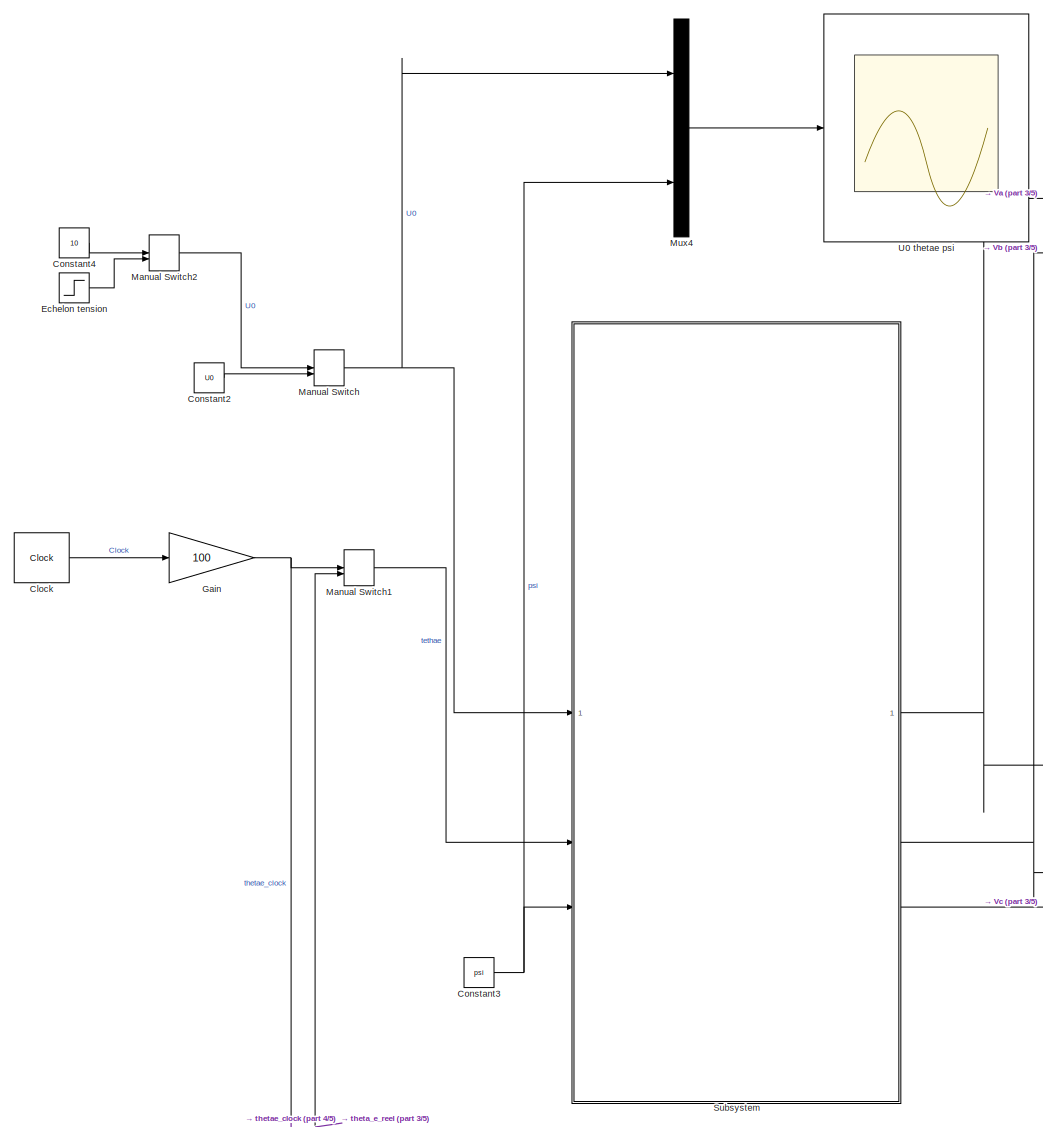
[diagram: root canvas - part 1/5, middle left region]
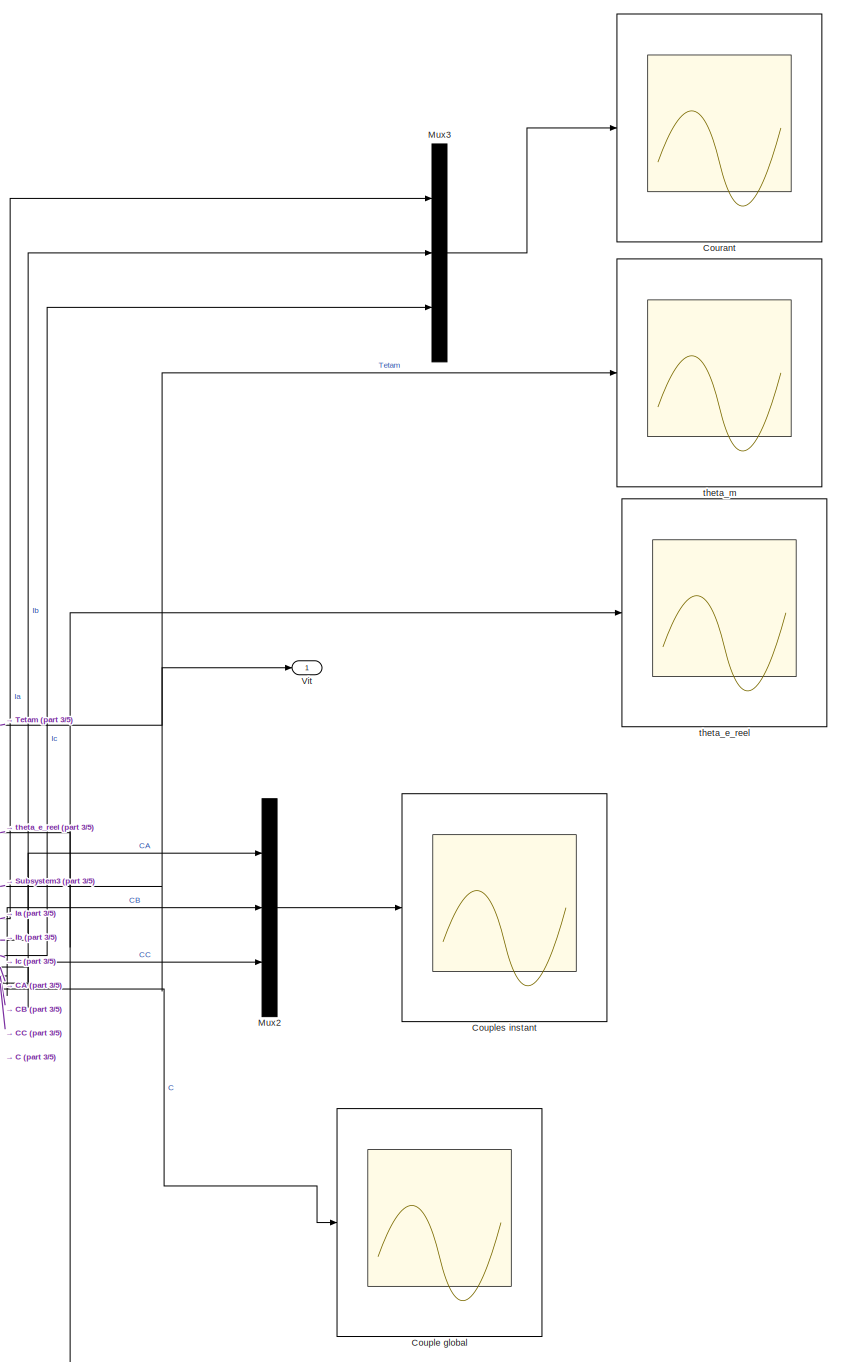
[diagram: root canvas - part 2/5, right side, full height]
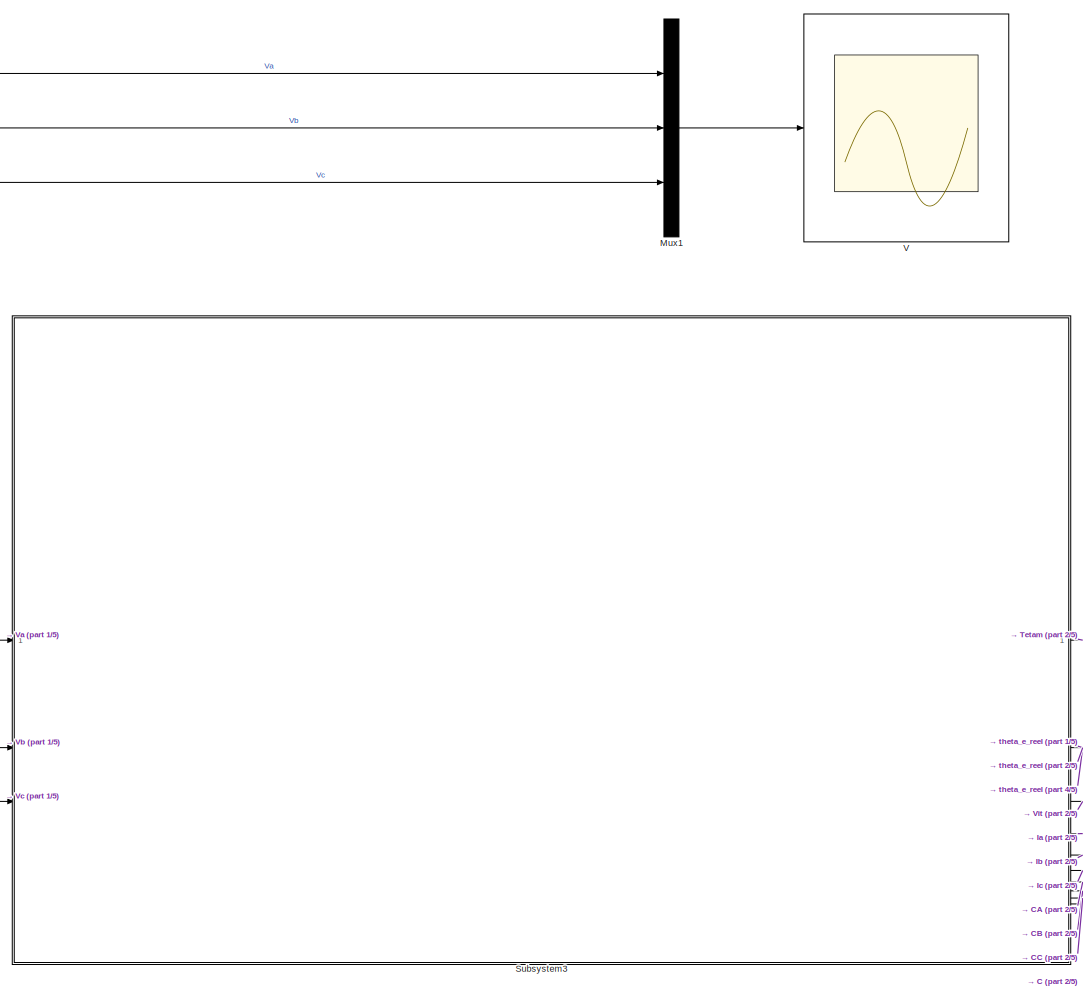
[diagram: root canvas - part 3/5, central region]
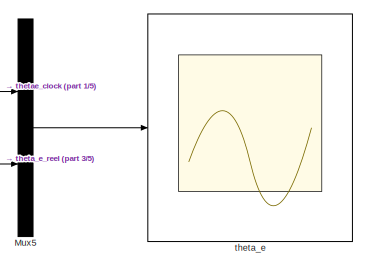
[diagram: root canvas - part 4/5, bottom left region]
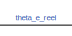
[diagram: root canvas - part 5/5, bottom center region]
MODEL slx_a0b3b5fac551
KIND model
CONFIG AbsTol = auto
CONFIG EnableMultiTasking = off
CONFIG FixedStep = auto
CONFIG InitFcn = parametretp3
CONFIG MaxStep = auto
CONFIG MinStep = auto
CONFIG RelTol = 1e-3
CONFIG SampleTimeConstraint = Unconstrained
CONFIG SolverName = ode23t
CONFIG StartFcn = parametretp3
CONFIG StartTime = 0.0
CONFIG StopTime = 4
BLOCK [Clock] Clock
BLOCK [Constant] Constant2
  Value = U0
BLOCK [Constant] Constant3
  Value = psi
BLOCK [Constant] Constant4
  Value = 10
BLOCK [Scope] Couple global
  Floating = off
  NumInputPorts = 1
  ScopeSpecificationString = Simulink.scopes.TimeScopeBlockCfg('CurrentConfiguration', extmgr.ConfigurationSet(extmgr.Configuration('Core','General UI',true),extmgr.Configuration('Core','Source UI',true),extmgr.Configuration('Sources','WiredSimulink',true,'DataLoggingVariableName','ScopeData1'),extmgr.Configuration('Visuals','Time Domain',true,'SerializedDisplays',{struct('MinYLimReal','-12.49998','MaxYLimReal','12.5','YLabel...<+1504ch>
BLOCK [Scope] Couples instant
  Floating = off
  NumInputPorts = 1
  ScopeSpecificationString = Simulink.scopes.TimeScopeBlockCfg('CurrentConfiguration', extmgr.ConfigurationSet(extmgr.Configuration('Core','General UI',true),extmgr.Configuration('Core','Source UI',true),extmgr.Configuration('Sources','WiredSimulink',true),extmgr.Configuration('Visuals','Time Domain',true,'SerializedDisplays',{struct('MinYLimReal','-12.49998','MaxYLimReal','12.5','YLabelReal','','MinYLimMag','0.00000','MaxYLi...<+1465ch>
BLOCK [Scope] Courant
  Floating = off
  NumInputPorts = 1
  ScopeSpecificationString = Simulink.scopes.TimeScopeBlockCfg('CurrentConfiguration', extmgr.ConfigurationSet(extmgr.Configuration('Core','General UI',true),extmgr.Configuration('Core','Source UI',true),extmgr.Configuration('Sources','WiredSimulink',true,'DataLoggingVariableName','ScopeData4'),extmgr.Configuration('Visuals','Time Domain',true,'SerializedDisplays',{struct('MinYLimReal','-12.96682','MaxYLimReal','13.04144','YL...<+1520ch>
BLOCK [Step] Echelon tension
  After = 10
  SampleTime = 0
BLOCK [Gain] Gain
  Gain = 100
BLOCK [ManualSwitch] Manual Switch
BLOCK [ManualSwitch] Manual Switch1
  CurrentSetting = 0
BLOCK [ManualSwitch] Manual Switch2
  CurrentSetting = 0
BLOCK [Mux] Mux1
  DisplayOption = bar
  Inputs = 3
BLOCK [Mux] Mux2
  DisplayOption = bar
  Inputs = 3
BLOCK [Mux] Mux3
  DisplayOption = bar
  Inputs = 3
BLOCK [Mux] Mux4
  DisplayOption = bar
  Inputs = 3
BLOCK [Mux] Mux5
  DisplayOption = bar
  Inputs = 2
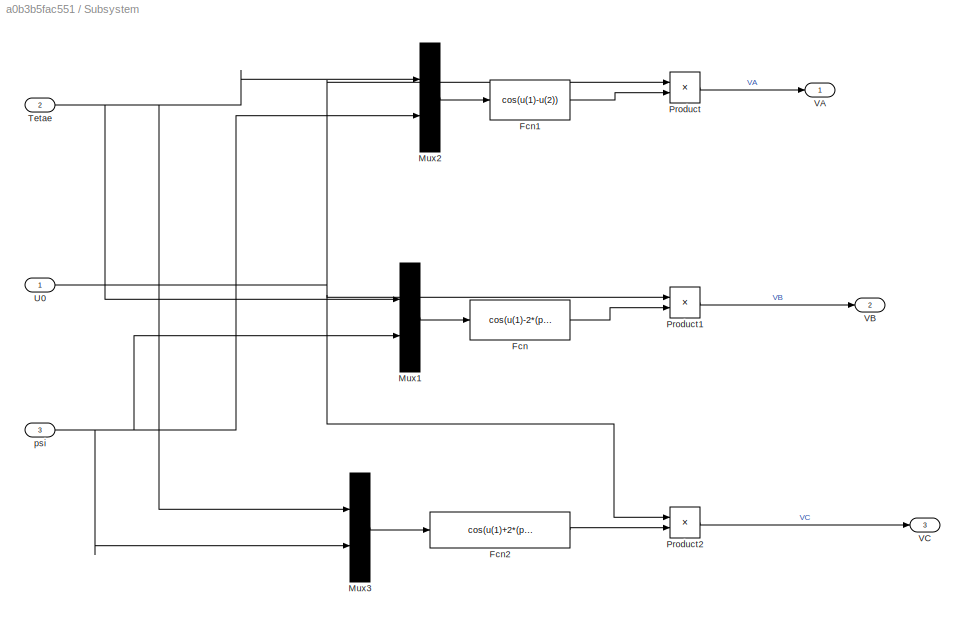
BLOCK [SubSystem] Subsystem
BLOCK [Fcn] Subsystem/Fcn
  Expr = cos(u(1)-2*(pi/3)-psi)
BLOCK [Fcn] Subsystem/Fcn1
  Expr = cos(u(1)-u(2))
BLOCK [Fcn] Subsystem/Fcn2
  Expr = cos(u(1)+2*(pi/3)-psi)
BLOCK [Mux] Subsystem/Mux1
  DisplayOption = bar
  Inputs = 2
BLOCK [Mux] Subsystem/Mux2
  DisplayOption = bar
  Inputs = 2
BLOCK [Mux] Subsystem/Mux3
  DisplayOption = bar
  Inputs = 2
BLOCK [Product] Subsystem/Product
BLOCK [Product] Subsystem/Product1
BLOCK [Product] Subsystem/Product2
BLOCK [Inport] Subsystem/Tetae
  Port = 2
BLOCK [Inport] Subsystem/U0
BLOCK [Outport] Subsystem/VA
BLOCK [Outport] Subsystem/VB
  Port = 2
BLOCK [Outport] Subsystem/VC
  Port = 3
BLOCK [Inport] Subsystem/psi
  Port = 3
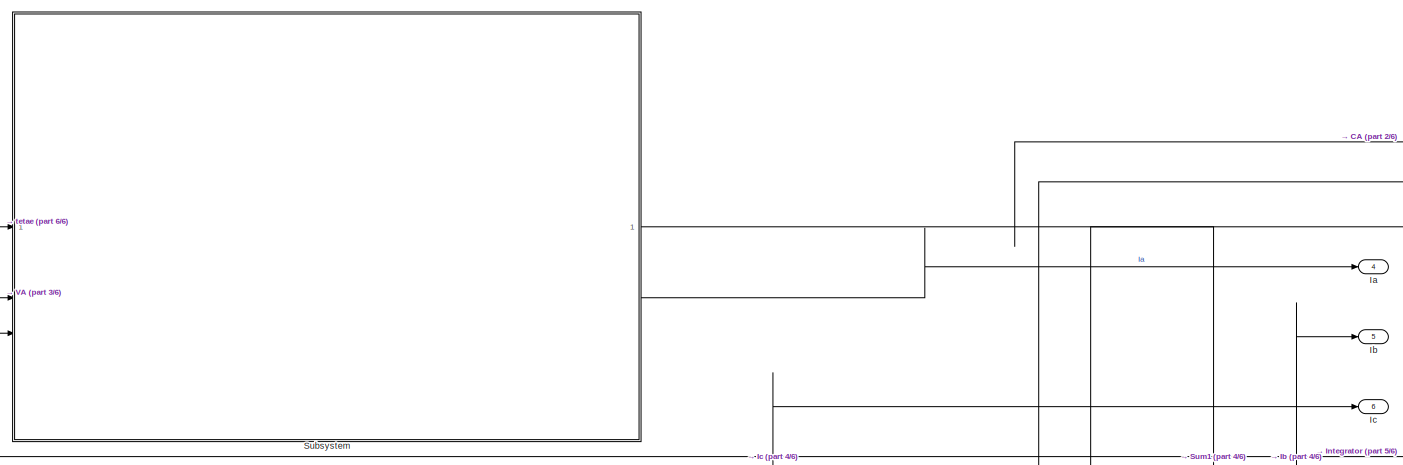
[diagram: Subsystem3 - part 1/6, top center region]
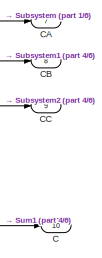
[diagram: Subsystem3 - part 2/6, top right region]
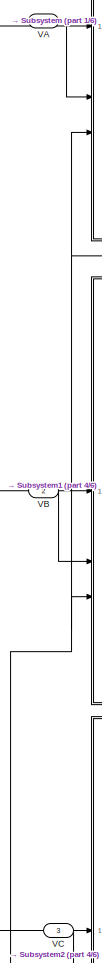
[diagram: Subsystem3 - part 3/6, middle left region]
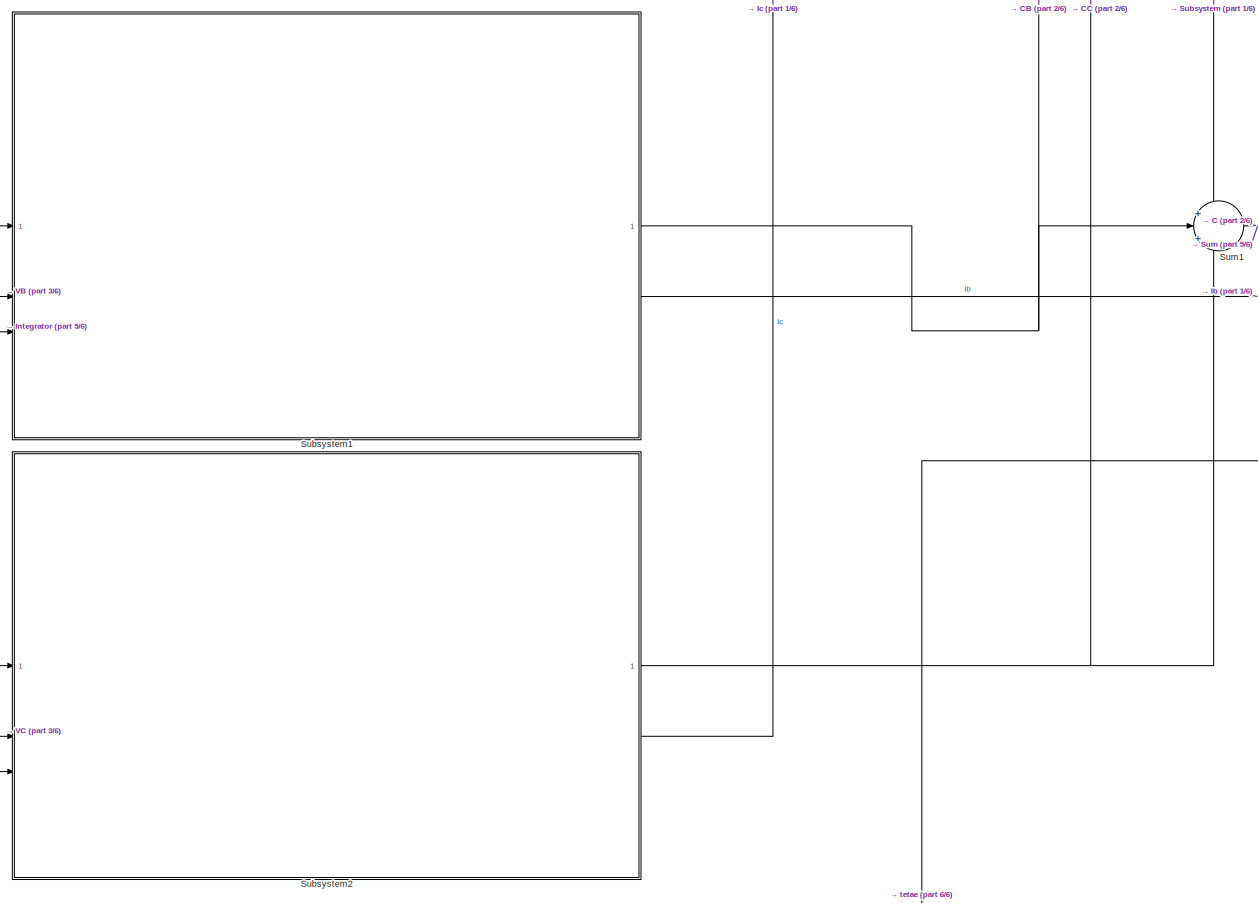
[diagram: Subsystem3 - part 4/6, central region]
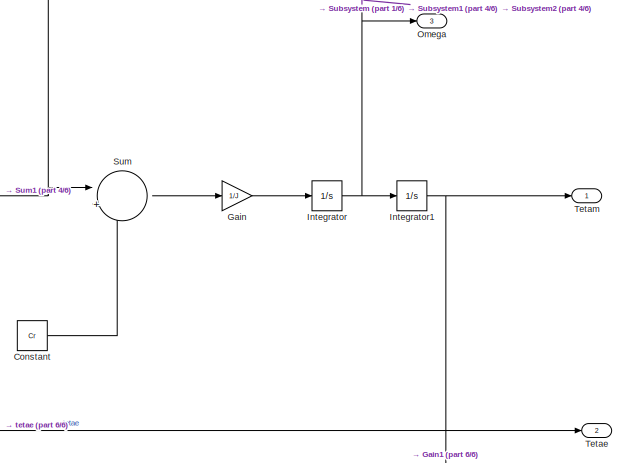
[diagram: Subsystem3 - part 5/6, middle right region]
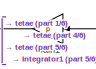
[diagram: Subsystem3 - part 6/6, bottom center region]
BLOCK [SubSystem] Subsystem3
BLOCK [Outport] Subsystem3/C
  Port = 10
BLOCK [Outport] Subsystem3/CA
  Port = 7
BLOCK [Outport] Subsystem3/CB
  Port = 8
BLOCK [Outport] Subsystem3/CC
  Port = 9
BLOCK [Constant] Subsystem3/Constant
  Value = Cr
BLOCK [Gain] Subsystem3/Gain
  Gain = 1/J
BLOCK [Gain] Subsystem3/Gain1
  Gain = p
BLOCK [Outport] Subsystem3/Ia
  Port = 4
BLOCK [Outport] Subsystem3/Ib
  Port = 5
BLOCK [Outport] Subsystem3/Ic
  Port = 6
BLOCK [Integrator] Subsystem3/Integrator
BLOCK [Integrator] Subsystem3/Integrator1
BLOCK [Outport] Subsystem3/Omega
  Port = 3
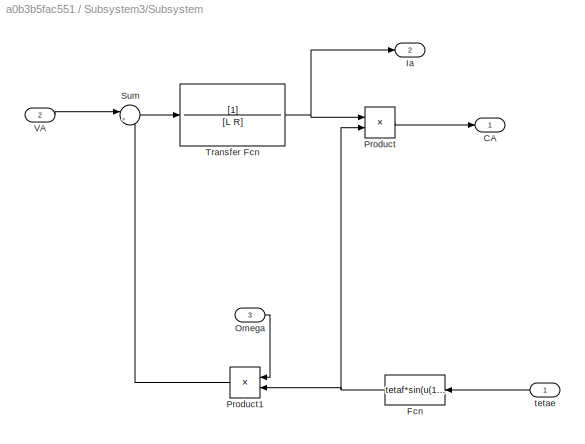
BLOCK [SubSystem] Subsystem3/Subsystem
BLOCK [Outport] Subsystem3/Subsystem/CA
BLOCK [Fcn] Subsystem3/Subsystem/Fcn
  Expr = tetaf*sin(u(1))
BLOCK [Outport] Subsystem3/Subsystem/Ia
  Port = 2
BLOCK [Inport] Subsystem3/Subsystem/Omega
  Port = 3
BLOCK [Product] Subsystem3/Subsystem/Product
BLOCK [Product] Subsystem3/Subsystem/Product1
BLOCK [Sum] Subsystem3/Subsystem/Sum
  Inputs = |+-
BLOCK [TransferFcn] Subsystem3/Subsystem/Transfer Fcn
  Denominator = [L R]
BLOCK [Inport] Subsystem3/Subsystem/VA
  Port = 2
BLOCK [Inport] Subsystem3/Subsystem/tetae
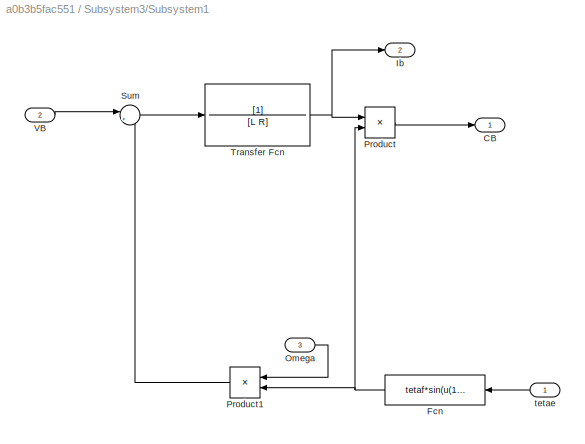
BLOCK [SubSystem] Subsystem3/Subsystem1
BLOCK [Outport] Subsystem3/Subsystem1/CB
BLOCK [Fcn] Subsystem3/Subsystem1/Fcn
  Expr = tetaf*sin(u(1)-(2*pi)/3)
BLOCK [Outport] Subsystem3/Subsystem1/Ib
  Port = 2
BLOCK [Inport] Subsystem3/Subsystem1/Omega
  Port = 3
BLOCK [Product] Subsystem3/Subsystem1/Product
BLOCK [Product] Subsystem3/Subsystem1/Product1
BLOCK [Sum] Subsystem3/Subsystem1/Sum
  Inputs = |+-
BLOCK [TransferFcn] Subsystem3/Subsystem1/Transfer Fcn
  Denominator = [L R]
BLOCK [Inport] Subsystem3/Subsystem1/VB
  Port = 2
BLOCK [Inport] Subsystem3/Subsystem1/tetae
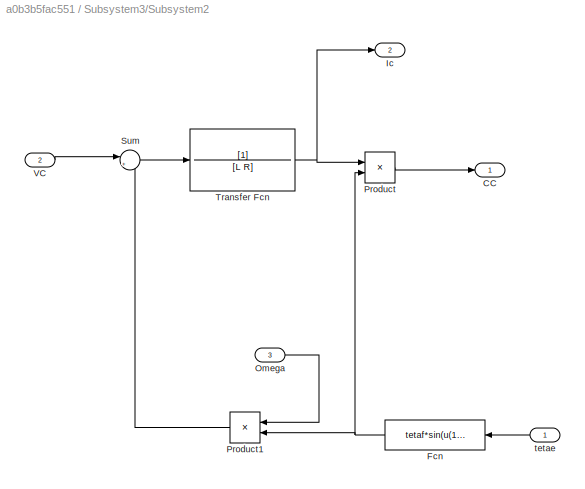
BLOCK [SubSystem] Subsystem3/Subsystem2
BLOCK [Outport] Subsystem3/Subsystem2/CC
BLOCK [Fcn] Subsystem3/Subsystem2/Fcn
  Expr = tetaf*sin(u(1)+(2*pi)/3)
BLOCK [Outport] Subsystem3/Subsystem2/Ic
  Port = 2
BLOCK [Inport] Subsystem3/Subsystem2/Omega
  Port = 3
BLOCK [Product] Subsystem3/Subsystem2/Product
BLOCK [Product] Subsystem3/Subsystem2/Product1
BLOCK [Sum] Subsystem3/Subsystem2/Sum
  Inputs = |+-
BLOCK [TransferFcn] Subsystem3/Subsystem2/Transfer Fcn
  Denominator = [L R]
BLOCK [Inport] Subsystem3/Subsystem2/VC
  Port = 2
BLOCK [Inport] Subsystem3/Subsystem2/tetae
BLOCK [Sum] Subsystem3/Sum
  Inputs = |+-
BLOCK [Sum] Subsystem3/Sum1
  Inputs = +|+|+
BLOCK [Outport] Subsystem3/Tetae
  Port = 2
BLOCK [Outport] Subsystem3/Tetam
BLOCK [Inport] Subsystem3/VA
BLOCK [Inport] Subsystem3/VB
  Port = 2
BLOCK [Inport] Subsystem3/VC
  Port = 3
BLOCK [Scope] U0 thetae psi
  Floating = off
  NumInputPorts = 1
  ScopeSpecificationString = Simulink.scopes.TimeScopeBlockCfg('CurrentConfiguration', extmgr.ConfigurationSet(extmgr.Configuration('Core','General UI',true),extmgr.Configuration('Core','Source UI',true),extmgr.Configuration('Sources','WiredSimulink',true,'DataLoggingVariableName','ScopeData5'),extmgr.Configuration('Visuals','Time Domain',true,'SerializedDisplays',{struct('MinYLimReal','-1.25','MaxYLimReal','11.25','YLabelRea...<+1482ch>
BLOCK [Scope] V
  Floating = off
  NumInputPorts = 1
  ScopeSpecificationString = Simulink.scopes.TimeScopeBlockCfg('CurrentConfiguration', extmgr.ConfigurationSet(extmgr.Configuration('Core','General UI',true),extmgr.Configuration('Core','Source UI',true),extmgr.Configuration('Sources','WiredSimulink',true,'DataLoggingVariableName','ScopeData2'),extmgr.Configuration('Visuals','Time Domain',true,'SerializedDisplays',{struct('MinYLimReal','-12.49998','MaxYLimReal','12.5','YLabel...<+1504ch>
BLOCK [Outport] Vit
BLOCK [Scope] theta_e
  Floating = off
  NumInputPorts = 1
  ScopeSpecificationString = Simulink.scopes.TimeScopeBlockCfg('CurrentConfiguration', extmgr.ConfigurationSet(extmgr.Configuration('Core','General UI',true),extmgr.Configuration('Core','Source UI',true),extmgr.Configuration('Sources','WiredSimulink',true,'DataLoggingVariableName','ScopeData6'),extmgr.Configuration('Visuals','Time Domain',true,'SerializedDisplays',{struct('MinYLimReal','-49.97953','MaxYLimReal','449.81573','Y...<+1545ch>
BLOCK [Scope] theta_e_reel
  Floating = off
  NumInputPorts = 1
  ScopeSpecificationString = Simulink.scopes.TimeScopeBlockCfg('CurrentConfiguration', extmgr.ConfigurationSet(extmgr.Configuration('Core','General UI',true),extmgr.Configuration('Core','Source UI',true),extmgr.Configuration('Sources','WiredSimulink',true,'DataLoggingVariableName','ScopeData7'),extmgr.Configuration('Visuals','Time Domain',true,'SerializedDisplays',{struct('MinYLimReal','-21.7125','MaxYLimReal','195.41253','YL...<+1499ch>
BLOCK [Scope] theta_m
  Floating = off
  NumInputPorts = 1
  ScopeSpecificationString = Simulink.scopes.TimeScopeBlockCfg('CurrentConfiguration', extmgr.ConfigurationSet(extmgr.Configuration('Core','General UI',true),extmgr.Configuration('Core','Source UI',true),extmgr.Configuration('Sources','WiredSimulink',true,'DataLoggingVariableName','ScopeData3'),extmgr.Configuration('Visuals','Time Domain',true,'SerializedDisplays',{struct('MinYLimReal','-7.2375','MaxYLimReal','65.13751','YLab...<+1512ch>
LINE Clock:1 -> Gain:1
LINE Constant2:1 -> Manual Switch:2
NET Constant3:1 -> Mux4:3, Subsystem:3
LINE Constant4:1 -> Manual Switch2:1
LINE Echelon tension:1 -> Manual Switch2:2
NET Gain:1 -> Manual Switch1:1, Mux5:1
LINE Manual Switch1:1 -> Subsystem:2
LINE Manual Switch2:1 -> Manual Switch:1
NET Manual Switch:1 -> Mux4:1, Subsystem:1
LINE Mux1:1 -> V:1
LINE Mux2:1 -> Couples instant:1
LINE Mux3:1 -> Courant:1
LINE Mux4:1 -> U0 thetae psi:1
LINE Mux5:1 -> theta_e:1
LINE Subsystem/Fcn1:1 -> Subsystem/Product:2
LINE Subsystem/Fcn2:1 -> Subsystem/Product2:2
LINE Subsystem/Fcn:1 -> Subsystem/Product1:2
LINE Subsystem/Mux1:1 -> Subsystem/Fcn:1
LINE Subsystem/Mux2:1 -> Subsystem/Fcn1:1
LINE Subsystem/Mux3:1 -> Subsystem/Fcn2:1
LINE Subsystem/Product1:1 -> Subsystem/VB:1
LINE Subsystem/Product2:1 -> Subsystem/VC:1
LINE Subsystem/Product:1 -> Subsystem/VA:1
NET Subsystem/Tetae:1 -> Subsystem/Mux1:1, Subsystem/Mux2:1, Subsystem/Mux3:1
NET Subsystem/U0:1 -> Subsystem/Product1:1, Subsystem/Product2:1, Subsystem/Product:1
NET Subsystem/psi:1 -> Subsystem/Mux1:2, Subsystem/Mux2:2, Subsystem/Mux3:2
LINE Subsystem3/Constant:1 -> Subsystem3/Sum:2
NET Subsystem3/Gain1:1 -> Subsystem3/Subsystem1:1, Subsystem3/Subsystem2:1, Subsystem3/Subsystem:1, Subsystem3/Tetae:1
LINE Subsystem3/Gain:1 -> Subsystem3/Integrator:1
NET Subsystem3/Integrator1:1 -> Subsystem3/Gain1:1, Subsystem3/Tetam:1
NET Subsystem3/Integrator:1 -> Subsystem3/Integrator1:1, Subsystem3/Omega:1, Subsystem3/Subsystem1:3, Subsystem3/Subsystem2:3, Subsystem3/Subsystem:3
NET Subsystem3/Subsystem/Fcn:1 -> Subsystem3/Subsystem/Product1:2, Subsystem3/Subsystem/Product:2
LINE Subsystem3/Subsystem/Omega:1 -> Subsystem3/Subsystem/Product1:1
LINE Subsystem3/Subsystem/Product1:1 -> Subsystem3/Subsystem/Sum:2
LINE Subsystem3/Subsystem/Product:1 -> Subsystem3/Subsystem/CA:1
LINE Subsystem3/Subsystem/Sum:1 -> Subsystem3/Subsystem/Transfer Fcn:1
NET Subsystem3/Subsystem/Transfer Fcn:1 -> Subsystem3/Subsystem/Ia:1, Subsystem3/Subsystem/Product:1
LINE Subsystem3/Subsystem/VA:1 -> Subsystem3/Subsystem/Sum:1
LINE Subsystem3/Subsystem/tetae:1 -> Subsystem3/Subsystem/Fcn:1
NET Subsystem3/Subsystem1/Fcn:1 -> Subsystem3/Subsystem1/Product1:2, Subsystem3/Subsystem1/Product:2
LINE Subsystem3/Subsystem1/Omega:1 -> Subsystem3/Subsystem1/Product1:1
LINE Subsystem3/Subsystem1/Product1:1 -> Subsystem3/Subsystem1/Sum:2
LINE Subsystem3/Subsystem1/Product:1 -> Subsystem3/Subsystem1/CB:1
LINE Subsystem3/Subsystem1/Sum:1 -> Subsystem3/Subsystem1/Transfer Fcn:1
NET Subsystem3/Subsystem1/Transfer Fcn:1 -> Subsystem3/Subsystem1/Ib:1, Subsystem3/Subsystem1/Product:1
LINE Subsystem3/Subsystem1/VB:1 -> Subsystem3/Subsystem1/Sum:1
LINE Subsystem3/Subsystem1/tetae:1 -> Subsystem3/Subsystem1/Fcn:1
NET Subsystem3/Subsystem1:1 -> Subsystem3/CB:1, Subsystem3/Sum1:2
LINE Subsystem3/Subsystem1:2 -> Subsystem3/Ib:1
NET Subsystem3/Subsystem2/Fcn:1 -> Subsystem3/Subsystem2/Product1:2, Subsystem3/Subsystem2/Product:2
LINE Subsystem3/Subsystem2/Omega:1 -> Subsystem3/Subsystem2/Product1:1
LINE Subsystem3/Subsystem2/Product1:1 -> Subsystem3/Subsystem2/Sum:2
LINE Subsystem3/Subsystem2/Product:1 -> Subsystem3/Subsystem2/CC:1
LINE Subsystem3/Subsystem2/Sum:1 -> Subsystem3/Subsystem2/Transfer Fcn:1
NET Subsystem3/Subsystem2/Transfer Fcn:1 -> Subsystem3/Subsystem2/Ic:1, Subsystem3/Subsystem2/Product:1
LINE Subsystem3/Subsystem2/VC:1 -> Subsystem3/Subsystem2/Sum:1
LINE Subsystem3/Subsystem2/tetae:1 -> Subsystem3/Subsystem2/Fcn:1
NET Subsystem3/Subsystem2:1 -> Subsystem3/CC:1, Subsystem3/Sum1:3
LINE Subsystem3/Subsystem2:2 -> Subsystem3/Ic:1
NET Subsystem3/Subsystem:1 -> Subsystem3/CA:1, Subsystem3/Sum1:1
LINE Subsystem3/Subsystem:2 -> Subsystem3/Ia:1
NET Subsystem3/Sum1:1 -> Subsystem3/C:1, Subsystem3/Sum:1
LINE Subsystem3/Sum:1 -> Subsystem3/Gain:1
LINE Subsystem3/VA:1 -> Subsystem3/Subsystem:2
LINE Subsystem3/VB:1 -> Subsystem3/Subsystem1:2
LINE Subsystem3/VC:1 -> Subsystem3/Subsystem2:2
LINE Subsystem3:1 -> theta_m:1
LINE Subsystem3:10 -> Couple global:1
NET Subsystem3:2 -> Manual Switch1:2, Mux5:2, theta_e_reel:1
LINE Subsystem3:3 -> Vit:1
LINE Subsystem3:4 -> Mux3:1
LINE Subsystem3:5 -> Mux3:2
LINE Subsystem3:6 -> Mux3:3
LINE Subsystem3:7 -> Mux2:1
LINE Subsystem3:8 -> Mux2:2
LINE Subsystem3:9 -> Mux2:3
NET Subsystem:1 -> Mux1:1, Subsystem3:1
NET Subsystem:2 -> Mux1:2, Subsystem3:2
NET Subsystem:3 -> Mux1:3, Subsystem3:3
note: NET lines group one-source signal fan-out (src -> all destinations, sorted); 1:1 wires keep LINE
